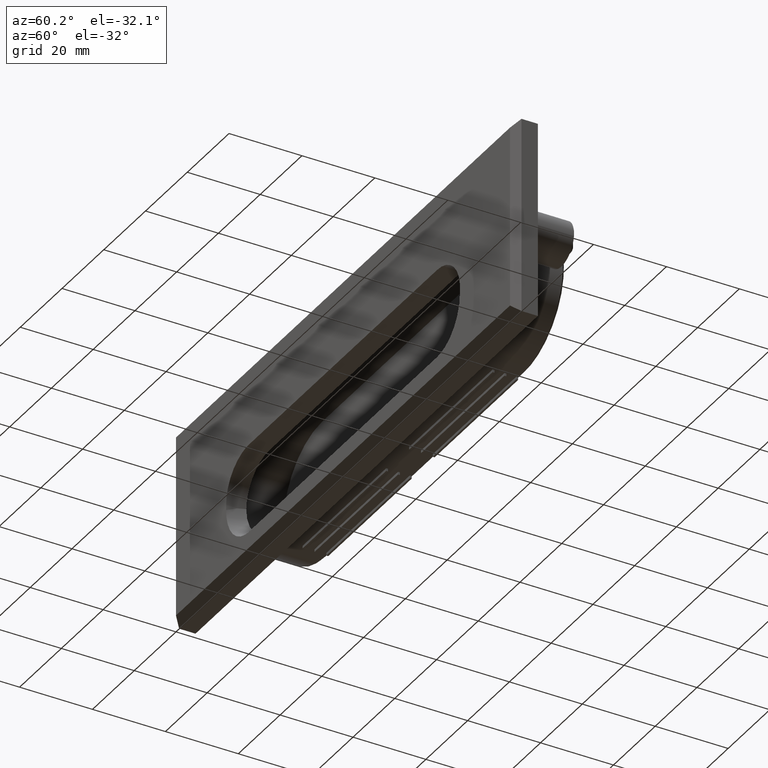
[diagram: clean part render]
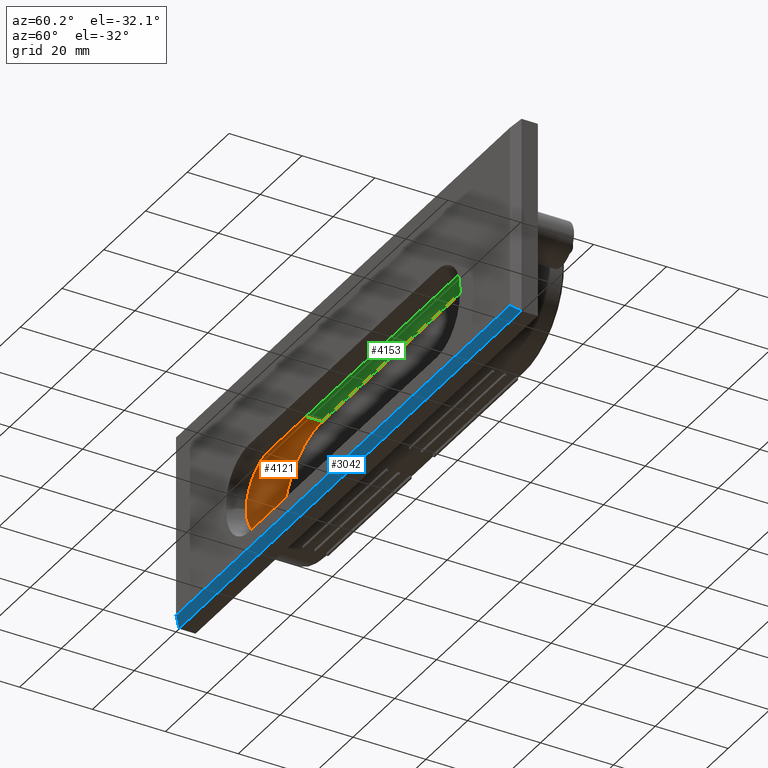
[diagram: same view with three faces highlighted in distinct colors, each labeled with its STEP entity id]
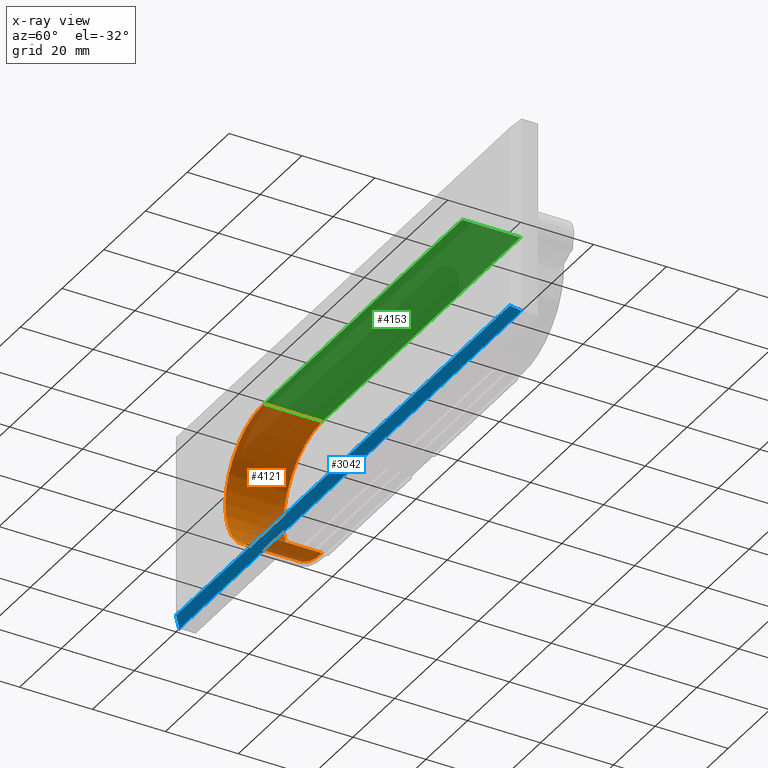
[diagram: x-ray of the same camera — body ghosted, the three highlighted faces saturated]
A machine part, auxiliary view with three faces highlighted in distinct colors.
The next image is the same camera in x-ray (body ghosted, the three faces saturated) — at least one of them is partly hidden behind the body in this view.
Their STEP definitions:

[orange] entity #4121 — the highlighted face is a freeform B-spline surface patch.
#3971=CARTESIAN_POINT('',(-47.500000000000000,21.0,18.500000000000000));
#3972=VERTEX_POINT('',#3971);
#3978=CARTESIAN_POINT('',(-47.500000000000000,21.0,-18.500000000000000));
#3979=VERTEX_POINT('',#3978);
#3980=CARTESIAN_POINT('',(-47.500000000000000,21.0,18.500000000000000));
#3981=CARTESIAN_POINT('',(-66.0,21.000000000000004,18.500000000000000));
#3982=CARTESIAN_POINT('',(-66.0,21.0,0.0));
#3983=CARTESIAN_POINT('',(-66.0,21.000000000000004,-18.500000000000000));
#3984=CARTESIAN_POINT('',(-47.500000000000000,21.0,-18.500000000000000));
#3992=(BOUNDED_CURVE()B_SPLINE_CURVE(2,(#3980,#3981,#3982,#3983,#3984),.UNSPECIFIED.,.F.,.U.)B_SPLINE_CURVE_WITH_KNOTS((3,2,3),(0.0,0.500000000000000,1.0),.UNSPECIFIED.)CURVE()GEOMETRIC_REPRESENTATION_ITEM()RATIONAL_B_SPLINE_CURVE((1.0,0.707106781186548,1.0,0.707106781186548,1.0))REPRESENTATION_ITEM(''));
#3993=EDGE_CURVE('',#3972,#3979,#3992,.T.);
#4071=CARTESIAN_POINT('',(-47.015726456304321,21.400000000000009,-18.493660512047800));
#4072=CARTESIAN_POINT('',(-47.015726456304321,4.589999999999886,-18.493660512047800));
#4073=CARTESIAN_POINT('',(-66.503978347593630,21.400000000000006,-19.003978347593687));
#4074=CARTESIAN_POINT('',(-66.503978347593630,4.589999999999887,-19.003978347593687));
#4075=CARTESIAN_POINT('',(-65.993660512047796,21.400000000000009,0.484273543695629));
#4076=CARTESIAN_POINT('',(-65.993660512047796,4.589999999999886,0.484273543695629));
#4077=CARTESIAN_POINT('',(-65.483342676501962,21.400000000000006,19.972525434984941));
#4078=CARTESIAN_POINT('',(-65.483342676501962,4.589999999999887,19.972525434984941));
#4079=CARTESIAN_POINT('',(-46.048506729034891,21.400000000000009,18.442970674062860));
#4080=CARTESIAN_POINT('',(-46.048506729034891,4.589999999999886,18.442970674062860));
#4088=(BOUNDED_SURFACE()B_SPLINE_SURFACE(1,2,((#4071,#4073,#4075,#4077,#4079),(#4072,#4074,#4076,#4078,#4080)),.UNSPECIFIED.,.F.,.F.,.U.)B_SPLINE_SURFACE_WITH_KNOTS((2,2),(3,2,3),(0.0,16.810000000000120),(0.0,31.792909041545862,63.585818083091709),.UNSPECIFIED.)GEOMETRIC_REPRESENTATION_ITEM()RATIONAL_B_SPLINE_SURFACE(((1.0,0.688354575693754,1.0,0.688354575693754,1.0),(1.0,0.688354575693754,1.0,0.688354575693754,1.0)))REPRESENTATION_ITEM('')SURFACE());
#4089=CARTESIAN_POINT('',(-47.500000000000000,4.999999999999890,18.500000000000000));
#4090=VERTEX_POINT('',#4089);
#4091=CARTESIAN_POINT('',(-47.500000000000000,4.999999999999890,-18.500000000000000));
#4092=VERTEX_POINT('',#4091);
#4093=CARTESIAN_POINT('',(-47.500000000000000,4.999999999999890,18.500000000000000));
#4094=CARTESIAN_POINT('',(-66.0,4.999999999999890,18.500000000000000));
#4095=CARTESIAN_POINT('',(-66.0,4.999999999999890,0.0));
#4096=CARTESIAN_POINT('',(-66.0,4.999999999999890,-18.500000000000000));
#4097=CARTESIAN_POINT('',(-47.500000000000000,4.999999999999890,-18.500000000000000));
#4105=(BOUNDED_CURVE()B_SPLINE_CURVE(2,(#4093,#4094,#4095,#4096,#4097),.UNSPECIFIED.,.F.,.U.)B_SPLINE_CURVE_WITH_KNOTS((3,2,3),(0.0,0.500000000000000,1.0),.UNSPECIFIED.)CURVE()GEOMETRIC_REPRESENTATION_ITEM()RATIONAL_B_SPLINE_CURVE((1.0,0.707106781186548,1.0,0.707106781186548,1.0))REPRESENTATION_ITEM(''));
#4106=EDGE_CURVE('',#4090,#4092,#4105,.T.);
#4107=ORIENTED_EDGE('',*,*,#4106,.T.);
#4108=CARTESIAN_POINT('',(-47.500000000000000,21.0,-18.500000000000000));
#4109=CARTESIAN_POINT('',(-47.500000000000000,4.999999999999890,-18.500000000000000));
#4110=QUASI_UNIFORM_CURVE('',1,(#4108,#4109),.UNSPECIFIED.,.F.,.U.);
#4111=EDGE_CURVE('',#3979,#4092,#4110,.T.);
#4112=ORIENTED_EDGE('',*,*,#4111,.F.);
#4113=ORIENTED_EDGE('',*,*,#3993,.F.);
#4114=CARTESIAN_POINT('',(-47.500000000000000,21.0,18.500000000000000));
#4115=CARTESIAN_POINT('',(-47.500000000000000,4.999999999999890,18.500000000000000));
#4116=QUASI_UNIFORM_CURVE('',1,(#4114,#4115),.UNSPECIFIED.,.F.,.U.);
#4117=EDGE_CURVE('',#3972,#4090,#4116,.T.);
#4118=ORIENTED_EDGE('',*,*,#4117,.T.);
#4119=EDGE_LOOP('',(#4107,#4112,#4113,#4118));
#4120=FACE_OUTER_BOUND('',#4119,.T.);
#4121=ADVANCED_FACE('',(#4120),#4088,.F.);

[blue] entity #3042 — the highlighted face is a freeform B-spline surface patch.
#2993=CARTESIAN_POINT('',(-82.0,1.999999999999670,-27.0));
#2994=VERTEX_POINT('',#2993);
#3000=CARTESIAN_POINT('',(-80.0,0.0,-25.0));
#3001=VERTEX_POINT('',#3000);
#3002=CARTESIAN_POINT('',(-82.0,1.999999999999670,-27.0));
#3003=CARTESIAN_POINT('',(-80.0,0.0,-25.0));
#3004=QUASI_UNIFORM_CURVE('',1,(#3002,#3003),.UNSPECIFIED.,.F.,.U.);
#3005=EDGE_CURVE('',#2994,#3001,#3004,.T.);
#3015=CARTESIAN_POINT('',(-90.191799682136178,-0.099899996123606,-24.900100003876400));
#3016=CARTESIAN_POINT('',(-90.191799682136178,2.099900049767618,-27.099900049767619));
#3017=CARTESIAN_POINT('',(90.191804080958974,-0.099899996123606,-24.900100003876400));
#3018=CARTESIAN_POINT('',(90.191804080958974,2.099900049767618,-27.099900049767619));
#3019=B_SPLINE_SURFACE_WITH_KNOTS('',1,1,((#3015,#3017),(#3016,#3018)),.UNSPECIFIED.,.F.,.F.,.U.,(2,2),(2,2),(0.0,3.110987059408325),(0.0,180.383603763095210),.UNSPECIFIED.);
#3020=CARTESIAN_POINT('',(82.0,1.999999999999670,-27.0));
#3021=VERTEX_POINT('',#3020);
#3022=CARTESIAN_POINT('',(80.0,0.0,-25.0));
#3023=VERTEX_POINT('',#3022);
#3024=CARTESIAN_POINT('',(82.0,1.999999999999670,-27.0));
#3025=CARTESIAN_POINT('',(80.0,0.0,-25.0));
#3026=QUASI_UNIFORM_CURVE('',1,(#3024,#3025),.UNSPECIFIED.,.F.,.U.);
#3027=EDGE_CURVE('',#3021,#3023,#3026,.T.);
#3028=ORIENTED_EDGE('',*,*,#3027,.T.);
#3029=CARTESIAN_POINT('',(-80.0,0.0,-25.0));
#3030=CARTESIAN_POINT('',(80.0,0.0,-25.0));
#3031=QUASI_UNIFORM_CURVE('',1,(#3029,#3030),.UNSPECIFIED.,.F.,.U.);
#3032=EDGE_CURVE('',#3001,#3023,#3031,.T.);
#3033=ORIENTED_EDGE('',*,*,#3032,.F.);
#3034=ORIENTED_EDGE('',*,*,#3005,.F.);
#3035=CARTESIAN_POINT('',(82.0,1.999999999999670,-27.0));
#3036=CARTESIAN_POINT('',(-82.0,1.999999999999670,-27.0));
#3037=QUASI_UNIFORM_CURVE('',1,(#3035,#3036),.UNSPECIFIED.,.F.,.U.);
#3038=EDGE_CURVE('',#3021,#2994,#3037,.T.);
#3039=ORIENTED_EDGE('',*,*,#3038,.F.);
#3040=EDGE_LOOP('',(#3028,#3033,#3034,#3039));
#3041=FACE_OUTER_BOUND('',#3040,.T.);
#3042=ADVANCED_FACE('',(#3041),#3019,.T.);

[green] entity #4153 — the highlighted face is a freeform B-spline surface patch.
#3969=CARTESIAN_POINT('',(47.500000000000000,21.0,18.500000000000000));
#3970=VERTEX_POINT('',#3969);
#3971=CARTESIAN_POINT('',(-47.500000000000000,21.0,18.500000000000000));
#3972=VERTEX_POINT('',#3971);
#3973=CARTESIAN_POINT('',(47.500000000000000,21.0,18.500000000000000));
#3974=CARTESIAN_POINT('',(-47.500000000000000,21.0,18.500000000000000));
#3975=QUASI_UNIFORM_CURVE('',1,(#3973,#3974),.UNSPECIFIED.,.F.,.U.);
#3976=EDGE_CURVE('',#3970,#3972,#3975,.T.);
#4040=CARTESIAN_POINT('',(47.500000000000000,4.999999999999890,18.500000000000000));
#4041=VERTEX_POINT('',#4040);
#4057=CARTESIAN_POINT('',(47.500000000000000,21.0,18.500000000000000));
#4058=CARTESIAN_POINT('',(47.500000000000000,4.999999999999890,18.500000000000000));
#4059=QUASI_UNIFORM_CURVE('',1,(#4057,#4058),.UNSPECIFIED.,.F.,.U.);
#4060=EDGE_CURVE('',#3970,#4041,#4059,.T.);
#4089=CARTESIAN_POINT('',(-47.500000000000000,4.999999999999890,18.500000000000000));
#4090=VERTEX_POINT('',#4089);
#4114=CARTESIAN_POINT('',(-47.500000000000000,21.0,18.500000000000000));
#4115=CARTESIAN_POINT('',(-47.500000000000000,4.999999999999890,18.500000000000000));
#4116=QUASI_UNIFORM_CURVE('',1,(#4114,#4115),.UNSPECIFIED.,.F.,.U.);
#4117=EDGE_CURVE('',#3972,#4090,#4116,.T.);
#4138=CARTESIAN_POINT('',(-52.245249815871567,4.200800031010988,18.500000000000000));
#4139=CARTESIAN_POINT('',(52.245252363970131,4.200800031010988,18.500000000000000));
#4140=CARTESIAN_POINT('',(-52.245249815871567,21.799200398142350,18.500000000000000));
#4141=CARTESIAN_POINT('',(52.245252363970131,21.799200398142350,18.500000000000000));
#4142=B_SPLINE_SURFACE_WITH_KNOTS('',1,1,((#4138,#4140),(#4139,#4141)),.UNSPECIFIED.,.F.,.F.,.U.,(2,2),(2,2),(0.0,104.490502179841700),(0.0,17.598400367131362),.UNSPECIFIED.);
#4143=ORIENTED_EDGE('',*,*,#3976,.F.);
#4144=ORIENTED_EDGE('',*,*,#4060,.T.);
#4145=CARTESIAN_POINT('',(47.500000000000000,4.999999999999890,18.500000000000000));
#4146=CARTESIAN_POINT('',(-47.500000000000000,4.999999999999890,18.500000000000000));
#4147=QUASI_UNIFORM_CURVE('',1,(#4145,#4146),.UNSPECIFIED.,.F.,.U.);
#4148=EDGE_CURVE('',#4041,#4090,#4147,.T.);
#4149=ORIENTED_EDGE('',*,*,#4148,.T.);
#4150=ORIENTED_EDGE('',*,*,#4117,.F.);
#4151=EDGE_LOOP('',(#4143,#4144,#4149,#4150));
#4152=FACE_OUTER_BOUND('',#4151,.T.);
#4153=ADVANCED_FACE('',(#4152),#4142,.F.);